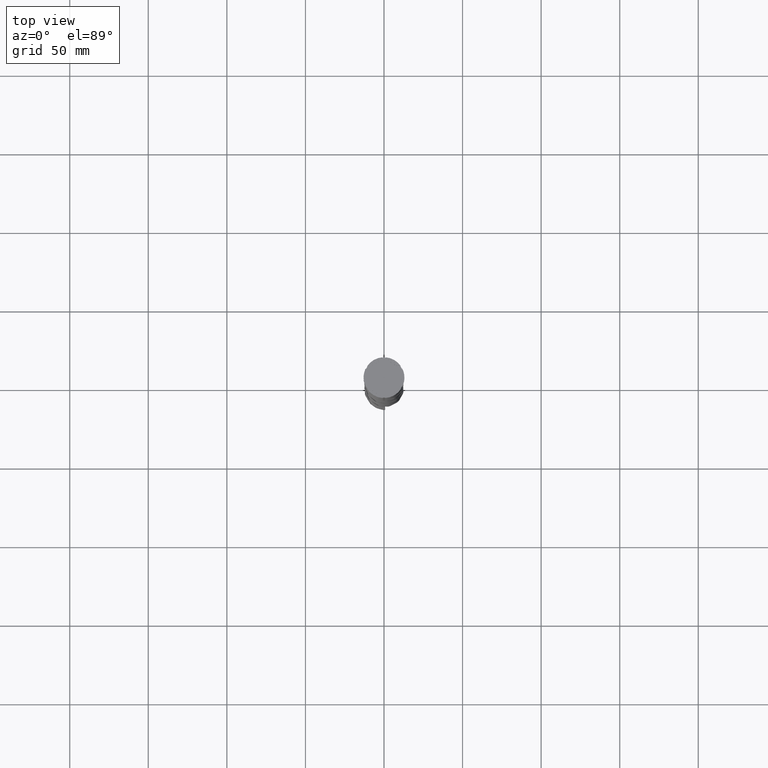
[diagram: clean part render]
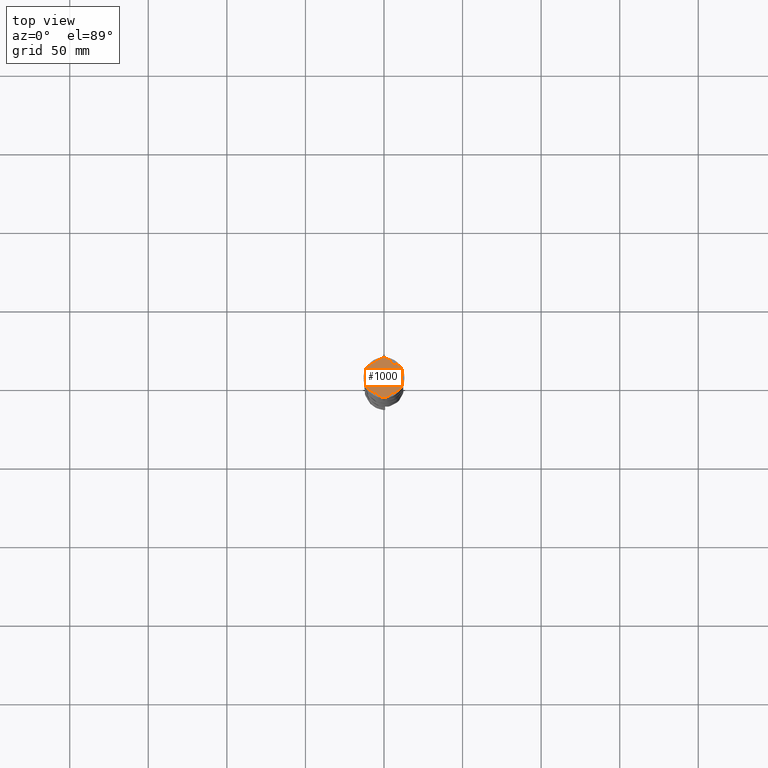
[diagram: same view with one face highlighted and labeled with its STEP entity id]
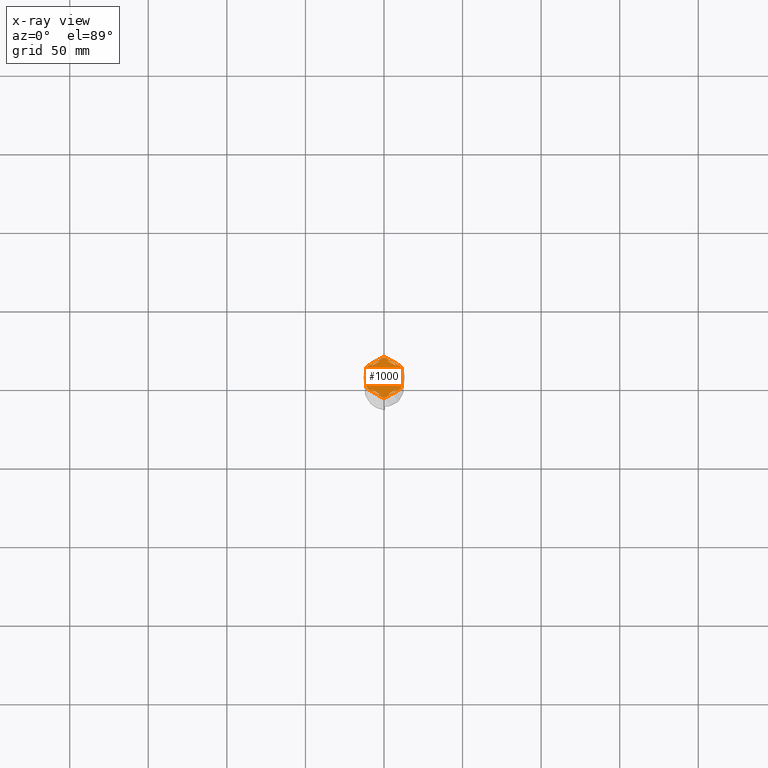
[diagram: x-ray of the same camera — body ghosted, the highlighted face saturated]
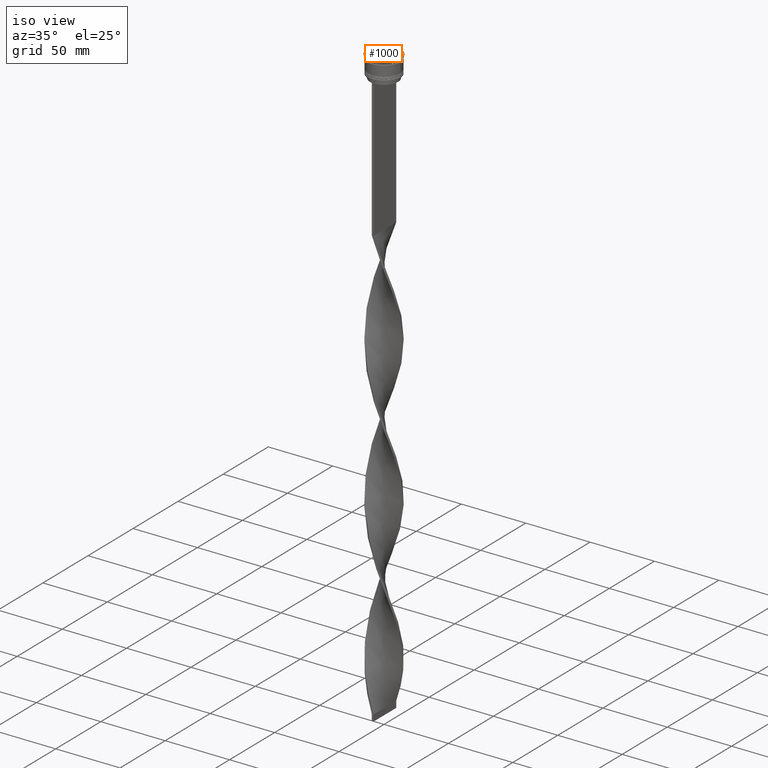
[diagram: same view with one face highlighted and labeled with its STEP entity id]
A machine part, top view. The second image highlights one B-rep face of the part: STEP entity #1000.
The next image is the same camera in x-ray: the body ghosted, the highlighted face saturated — about 0% of this face is hidden behind the body in this view.
A second angle (iso view) of the same face is appended — the face is thin or edge-on in the first view.
In plain terms, the highlighted planar face has unit normal (0, 0, 1).
Its self-contained STEP definition (entity closure, byte-faithful):
#6 = EDGE_CURVE ( 'NONE', #275, #1068, #1465, .T. ) ;
#7 = EDGE_CURVE ( 'NONE', #3404, #1574, #787, .T. ) ;
#10 = VERTEX_POINT ( 'NONE', #1131 ) ;
#82 = VERTEX_POINT ( 'NONE', #4408 ) ;
#87 = DIRECTION ( 'NONE',  ( -0.000000000000000000, -0.000000000000000000, -1.000000000000000000 ) ) ;
#92 = EDGE_LOOP ( 'NONE', ( #3323, #2376 ) ) ;
#137 = FACE_BOUND ( 'NONE', #1158, .T. ) ;
#141 = VERTEX_POINT ( 'NONE', #1529 ) ;
#156 = CARTESIAN_POINT ( 'NONE',  ( 0.000000000000000000, 0.000000000000000000, -1.000000000000000000 ) ) ;
#185 = AXIS2_PLACEMENT_3D ( 'NONE', #1970, #1545, #3731 ) ;
#186 = FACE_BOUND ( 'NONE', #3829, .T. ) ;
#213 = EDGE_LOOP ( 'NONE', ( #528, #3047, #1829, #2079, #3159, #2862, #894, #3066, #591, #1643, #510, #2410 ) ) ;
#275 = VERTEX_POINT ( 'NONE', #1103 ) ;
#302 = DIRECTION ( 'NONE',  ( 1.000000000000000000, 0.000000000000000000, 0.000000000000000000 ) ) ;
#340 = CARTESIAN_POINT ( 'NONE',  ( 0.000000000000000000, 0.000000000000000000, -1.000000000000000000 ) ) ;
#358 = ORIENTED_EDGE ( 'NONE', *, *, #4393, .F. ) ;
#391 = DIRECTION ( 'NONE',  ( -0.000000000000000000, -0.000000000000000000, -1.000000000000000000 ) ) ;
#443 = CARTESIAN_POINT ( 'NONE',  ( -11.50000000000000000, -5.388877434122992582, -1.000000000000000000 ) ) ;
#458 = CARTESIAN_POINT ( 'NONE',  ( -10.41690475583121689, 7.264853426459546348, -1.000000000000000000 ) ) ;
#463 = AXIS2_PLACEMENT_3D ( 'NONE', #2707, #1558, #3422 ) ;
#485 = EDGE_CURVE ( 'NONE', #2876, #1777, #888, .T. ) ;
#496 = CARTESIAN_POINT ( 'NONE',  ( 11.49999999999999822, -6.639528095680694797, -1.000000000000000000 ) ) ;
#510 = ORIENTED_EDGE ( 'NONE', *, *, #485, .T. ) ;
#528 = ORIENTED_EDGE ( 'NONE', *, *, #3219, .T. ) ;
#529 = PLANE ( 'NONE',  #463 ) ;
#541 = VERTEX_POINT ( 'NONE', #3752 ) ;
#544 = EDGE_CURVE ( 'NONE', #1068, #275, #4242, .T. ) ;
#553 = FACE_BOUND ( 'NONE', #3350, .T. ) ;
#554 = VECTOR ( 'NONE', #3702, 1000.000000000000000 ) ;
#561 = CIRCLE ( 'NONE', #713, 12.69999999999999929 ) ;
#591 = ORIENTED_EDGE ( 'NONE', *, *, #3009, .T. ) ;
#661 = EDGE_CURVE ( 'NONE', #141, #3609, #3010, .T. ) ;
#671 = CARTESIAN_POINT ( 'NONE',  ( 10.49999999999999467, 6.062177826491072175, -1.000000000000000888 ) ) ;
#682 = VERTEX_POINT ( 'NONE', #1355 ) ;
#713 = AXIS2_PLACEMENT_3D ( 'NONE', #742, #391, #3258 ) ;
#718 = VERTEX_POINT ( 'NONE', #3256 ) ;
#742 = CARTESIAN_POINT ( 'NONE',  ( 0.000000000000000000, 0.000000000000000000, -1.000000000000000000 ) ) ;
#748 = CARTESIAN_POINT ( 'NONE',  ( -10.41690475583121334, -7.264853426459548125, -1.000000000000000000 ) ) ;
#759 = CARTESIAN_POINT ( 'NONE',  ( 1.083095244168774673, -12.65373086058253982, -1.000000000000000000 ) ) ;
#767 = EDGE_CURVE ( 'NONE', #1623, #1777, #3087, .T. ) ;
#787 = LINE ( 'NONE', #1886, #998 ) ;
#803 = EDGE_CURVE ( 'NONE', #1787, #682, #1134, .T. ) ;
#809 = CARTESIAN_POINT ( 'NONE',  ( -11.50000000000000000, 6.639528095680691244, -1.000000000000000000 ) ) ;
#815 = CARTESIAN_POINT ( 'NONE',  ( 0.000000000000000000, 0.000000000000000000, -1.000000000000000000 ) ) ;
#837 = DIRECTION ( 'NONE',  ( 1.000000000000000000, 0.000000000000000000, 0.000000000000000000 ) ) ;
#842 = AXIS2_PLACEMENT_3D ( 'NONE', #156, #4451, #3391 ) ;
#879 = CARTESIAN_POINT ( 'NONE',  ( -2.410545827099867200, 10.73262637081210613, -1.000000000000000888 ) ) ;
#881 = VERTEX_POINT ( 'NONE', #1094 ) ;
#885 = EDGE_CURVE ( 'NONE', #4044, #4464, #2222, .T. ) ;
#888 = LINE ( 'NONE', #1929, #1822 ) ;
#894 = ORIENTED_EDGE ( 'NONE', *, *, #885, .T. ) ;
#902 = ORIENTED_EDGE ( 'NONE', *, *, #3064, .F. ) ;
#932 = DIRECTION ( 'NONE',  ( 1.000000000000000000, -1.776356839400250465E-14, 0.000000000000000000 ) ) ;
#980 = CARTESIAN_POINT ( 'NONE',  ( 0.000000000000000000, 0.000000000000000000, -1.000000000000000000 ) ) ;
#990 = AXIS2_PLACEMENT_3D ( 'NONE', #980, #3914, #4278 ) ;
#998 = VECTOR ( 'NONE', #2240, 1000.000000000000000 ) ;
#1000 = ADVANCED_FACE ( 'NONE', ( #137, #186, #1273, #4527, #4125, #553, #4080 ), #529, .T. ) ;
#1011 = AXIS2_PLACEMENT_3D ( 'NONE', #1589, #2651, #932 ) ;
#1068 = VERTEX_POINT ( 'NONE', #879 ) ;
#1094 = CARTESIAN_POINT ( 'NONE',  ( -1.083095244168783333, 12.65373086058254160, -1.000000000000000000 ) ) ;
#1103 = CARTESIAN_POINT ( 'NONE',  ( -8.089454172900135021, 7.453907108661106840, -1.000000000000000888 ) ) ;
#1112 = EDGE_CURVE ( 'NONE', #1653, #3438, #4626, .T. ) ;
#1122 = DIRECTION ( 'NONE',  ( 1.000000000000000000, 0.000000000000000000, 0.000000000000000000 ) ) ;
#1131 = CARTESIAN_POINT ( 'NONE',  ( 11.49999999999999822, 5.388877434122992582, -1.000000000000000000 ) ) ;
#1134 = LINE ( 'NONE', #1890, #3470 ) ;
#1137 = AXIS2_PLACEMENT_3D ( 'NONE', #3520, #4602, #302 ) ;
#1158 = EDGE_LOOP ( 'NONE', ( #3276, #2864 ) ) ;
#1179 = CARTESIAN_POINT ( 'NONE',  ( 2.410545827099861871, 10.73262637081210791, -1.000000000000000888 ) ) ;
#1185 = EDGE_LOOP ( 'NONE', ( #3807, #1438, #3831 ) ) ;
#1189 = VERTEX_POINT ( 'NONE', #4274 ) ;
#1200 = EDGE_CURVE ( 'NONE', #682, #1787, #2421, .T. ) ;
#1237 = DIRECTION ( 'NONE',  ( 0.000000000000000000, 0.000000000000000000, 1.000000000000000000 ) ) ;
#1238 = DIRECTION ( 'NONE',  ( -0.8660254037844385966, -0.5000000000000001110, 0.000000000000000000 ) ) ;
#1247 = AXIS2_PLACEMENT_3D ( 'NONE', #2908, #4351, #2229 ) ;
#1273 = FACE_BOUND ( 'NONE', #4477, .T. ) ;
#1278 = CARTESIAN_POINT ( 'NONE',  ( 0.000000000000000000, 13.27905619136138959, -1.000000000000000000 ) ) ;
#1317 = ORIENTED_EDGE ( 'NONE', *, *, #803, .F. ) ;
#1355 = CARTESIAN_POINT ( 'NONE',  ( 2.410545827099865868, -10.73262637081210791, -1.000000000000000888 ) ) ;
#1369 = AXIS2_PLACEMENT_3D ( 'NONE', #2595, #87, #1536 ) ;
#1438 = ORIENTED_EDGE ( 'NONE', *, *, #2664, .F. ) ;
#1465 = LINE ( 'NONE', #4049, #3926 ) ;
#1529 = CARTESIAN_POINT ( 'NONE',  ( -11.00000000000000000, 0.000000000000000000, -1.000000000000000000 ) ) ;
#1530 = VECTOR ( 'NONE', #4399, 1000.000000000000000 ) ;
#1536 = DIRECTION ( 'NONE',  ( 1.000000000000000000, 0.000000000000000000, 0.000000000000000000 ) ) ;
#1539 = LINE ( 'NONE', #4414, #554 ) ;
#1541 = EDGE_CURVE ( 'NONE', #3551, #4464, #2196, .T. ) ;
#1545 = DIRECTION ( 'NONE',  ( 0.000000000000000000, 0.000000000000000000, 1.000000000000000000 ) ) ;
#1558 = DIRECTION ( 'NONE',  ( 0.000000000000000000, 0.000000000000000000, 1.000000000000000000 ) ) ;
#1567 = LINE ( 'NONE', #496, #1530 ) ;
#1574 = VERTEX_POINT ( 'NONE', #4480 ) ;
#1577 = DIRECTION ( 'NONE',  ( -0.8660254037844388186, 0.4999999999999997224, 0.000000000000000000 ) ) ;
#1589 = CARTESIAN_POINT ( 'NONE',  ( 0.000000000000000000, 0.000000000000000000, -1.000000000000000000 ) ) ;
#1602 = CIRCLE ( 'NONE', #2657, 11.00000000000000000 ) ;
#1621 = CIRCLE ( 'NONE', #1247, 12.69999999999999929 ) ;
#1623 = VERTEX_POINT ( 'NONE', #3369 ) ;
#1643 = ORIENTED_EDGE ( 'NONE', *, *, #4198, .F. ) ;
#1653 = VERTEX_POINT ( 'NONE', #1179 ) ;
#1659 = LINE ( 'NONE', #1278, #2879 ) ;
#1703 = CIRCLE ( 'NONE', #2300, 12.69999999999999929 ) ;
#1722 = EDGE_CURVE ( 'NONE', #718, #1956, #1912, .T. ) ;
#1725 = DIRECTION ( 'NONE',  ( 0.8660254037844387076, -0.4999999999999999445, 0.000000000000000000 ) ) ;
#1768 = CARTESIAN_POINT ( 'NONE',  ( 10.41690475583121867, -7.264853426459537467, -1.000000000000000000 ) ) ;
#1777 = VERTEX_POINT ( 'NONE', #1768 ) ;
#1780 = EDGE_CURVE ( 'NONE', #1189, #141, #1892, .T. ) ;
#1787 = VERTEX_POINT ( 'NONE', #2456 ) ;
#1811 = CARTESIAN_POINT ( 'NONE',  ( 1.083095244168781557, 12.65373086058254160, -1.000000000000000000 ) ) ;
#1815 = VECTOR ( 'NONE', #1725, 999.9999999999998863 ) ;
#1822 = VECTOR ( 'NONE', #1994, 1000.000000000000114 ) ;
#1829 = ORIENTED_EDGE ( 'NONE', *, *, #1722, .T. ) ;
#1854 = CARTESIAN_POINT ( 'NONE',  ( -10.49999999999999822, -3.278719262151000624, -1.000000000000000888 ) ) ;
#1855 = DIRECTION ( 'NONE',  ( -0.000000000000000000, -0.000000000000000000, -1.000000000000000000 ) ) ;
#1886 = CARTESIAN_POINT ( 'NONE',  ( -10.49999999999999822, -6.062177826491068622, -1.000000000000000888 ) ) ;
#1890 = CARTESIAN_POINT ( 'NONE',  ( -2.602085213965210642E-15, -12.12435565298214080, -1.000000000000000888 ) ) ;
#1892 = CIRCLE ( 'NONE', #4526, 11.00000000000000000 ) ;
#1912 = LINE ( 'NONE', #3763, #3625 ) ;
#1929 = CARTESIAN_POINT ( 'NONE',  ( 5.612359739892467248E-18, -13.27905619136138959, -1.000000000000000000 ) ) ;
#1945 = CARTESIAN_POINT ( 'NONE',  ( 0.000000000000000000, 0.000000000000000000, -1.000000000000000000 ) ) ;
#1956 = VERTEX_POINT ( 'NONE', #1811 ) ;
#1970 = CARTESIAN_POINT ( 'NONE',  ( 0.000000000000000000, 0.000000000000000000, -1.000000000000000000 ) ) ;
#1994 = DIRECTION ( 'NONE',  ( 0.8660254037844385966, 0.4999999999999999445, 0.000000000000000000 ) ) ;
#2059 = CIRCLE ( 'NONE', #1011, 12.69999999999999929 ) ;
#2079 = ORIENTED_EDGE ( 'NONE', *, *, #4600, .F. ) ;
#2196 = CIRCLE ( 'NONE', #842, 12.69999999999999929 ) ;
#2222 = LINE ( 'NONE', #809, #4523 ) ;
#2229 = DIRECTION ( 'NONE',  ( 1.000000000000000000, 1.243449787580175325E-14, 0.000000000000000000 ) ) ;
#2240 = DIRECTION ( 'NONE',  ( -0.8660254037844384856, 0.5000000000000002220, 0.000000000000000000 ) ) ;
#2242 = DIRECTION ( 'NONE',  ( 0.000000000000000000, -1.000000000000000000, 0.000000000000000000 ) ) ;
#2268 = VERTEX_POINT ( 'NONE', #3028 ) ;
#2300 = AXIS2_PLACEMENT_3D ( 'NONE', #4371, #1855, #1122 ) ;
#2376 = ORIENTED_EDGE ( 'NONE', *, *, #7, .F. ) ;
#2410 = ORIENTED_EDGE ( 'NONE', *, *, #767, .F. ) ;
#2421 = CIRCLE ( 'NONE', #1137, 11.00000000000000000 ) ;
#2456 = CARTESIAN_POINT ( 'NONE',  ( 8.089454172900135021, -7.453907108661109504, -1.000000000000000888 ) ) ;
#2513 = ORIENTED_EDGE ( 'NONE', *, *, #6, .F. ) ;
#2548 = DIRECTION ( 'NONE',  ( -0.8660254037844387076, -0.4999999999999999445, 0.000000000000000000 ) ) ;
#2595 = CARTESIAN_POINT ( 'NONE',  ( 0.000000000000000000, 0.000000000000000000, -1.000000000000000000 ) ) ;
#2627 = CARTESIAN_POINT ( 'NONE',  ( -2.410545827099876082, -10.73262637081210435, -1.000000000000000888 ) ) ;
#2651 = DIRECTION ( 'NONE',  ( -0.000000000000000000, -0.000000000000000000, -1.000000000000000000 ) ) ;
#2657 = AXIS2_PLACEMENT_3D ( 'NONE', #4562, #3021, #4490 ) ;
#2664 = EDGE_CURVE ( 'NONE', #3609, #1189, #1539, .T. ) ;
#2707 = CARTESIAN_POINT ( 'NONE',  ( 0.000000000000000000, 0.000000000000000000, -1.000000000000000000 ) ) ;
#2732 = CIRCLE ( 'NONE', #3336, 11.00000000000000000 ) ;
#2777 = DIRECTION ( 'NONE',  ( 1.000000000000000000, 0.000000000000000000, 0.000000000000000000 ) ) ;
#2862 = ORIENTED_EDGE ( 'NONE', *, *, #4601, .F. ) ;
#2864 = ORIENTED_EDGE ( 'NONE', *, *, #1112, .F. ) ;
#2876 = VERTEX_POINT ( 'NONE', #759 ) ;
#2879 = VECTOR ( 'NONE', #1238, 1000.000000000000114 ) ;
#2908 = CARTESIAN_POINT ( 'NONE',  ( 0.000000000000000000, 0.000000000000000000, -1.000000000000000000 ) ) ;
#2929 = CARTESIAN_POINT ( 'NONE',  ( 8.089454172900138573, 7.453907108661105063, -1.000000000000000888 ) ) ;
#2951 = VECTOR ( 'NONE', #3799, 1000.000000000000227 ) ;
#3009 = EDGE_CURVE ( 'NONE', #3551, #541, #4129, .T. ) ;
#3010 = CIRCLE ( 'NONE', #990, 11.00000000000000000 ) ;
#3021 = DIRECTION ( 'NONE',  ( 0.000000000000000000, 0.000000000000000000, 1.000000000000000000 ) ) ;
#3028 = CARTESIAN_POINT ( 'NONE',  ( 10.49999999999999467, 3.278719262151012170, -1.000000000000000888 ) ) ;
#3047 = ORIENTED_EDGE ( 'NONE', *, *, #3670, .F. ) ;
#3064 = EDGE_CURVE ( 'NONE', #82, #2268, #4007, .T. ) ;
#3066 = ORIENTED_EDGE ( 'NONE', *, *, #1541, .F. ) ;
#3087 = CIRCLE ( 'NONE', #1369, 12.69999999999999929 ) ;
#3110 = LINE ( 'NONE', #3812, #4335 ) ;
#3128 = ORIENTED_EDGE ( 'NONE', *, *, #544, .F. ) ;
#3131 = EDGE_CURVE ( 'NONE', #1574, #3404, #1602, .T. ) ;
#3158 = DIRECTION ( 'NONE',  ( 0.000000000000000000, 0.000000000000000000, 1.000000000000000000 ) ) ;
#3159 = ORIENTED_EDGE ( 'NONE', *, *, #3643, .T. ) ;
#3219 = EDGE_CURVE ( 'NONE', #1623, #10, #1567, .T. ) ;
#3256 = CARTESIAN_POINT ( 'NONE',  ( 10.41690475583121156, 7.264853426459550789, -1.000000000000000000 ) ) ;
#3258 = DIRECTION ( 'NONE',  ( 1.000000000000000000, 0.000000000000000000, 0.000000000000000000 ) ) ;
#3276 = ORIENTED_EDGE ( 'NONE', *, *, #3537, .F. ) ;
#3304 = CARTESIAN_POINT ( 'NONE',  ( -11.50000000000000000, 5.388877434122992582, -1.000000000000000000 ) ) ;
#3323 = ORIENTED_EDGE ( 'NONE', *, *, #3131, .F. ) ;
#3336 = AXIS2_PLACEMENT_3D ( 'NONE', #815, #4057, #837 ) ;
#3350 = EDGE_LOOP ( 'NONE', ( #3128, #2513 ) ) ;
#3369 = CARTESIAN_POINT ( 'NONE',  ( 11.49999999999999822, -5.388877434122996135, -1.000000000000000000 ) ) ;
#3391 = DIRECTION ( 'NONE',  ( 1.000000000000000000, 7.105427357601001859E-15, 0.000000000000000000 ) ) ;
#3404 = VERTEX_POINT ( 'NONE', #2627 ) ;
#3422 = DIRECTION ( 'NONE',  ( 1.000000000000000000, 0.000000000000000000, -0.000000000000000000 ) ) ;
#3438 = VERTEX_POINT ( 'NONE', #2929 ) ;
#3470 = VECTOR ( 'NONE', #2548, 999.9999999999998863 ) ;
#3520 = CARTESIAN_POINT ( 'NONE',  ( 0.000000000000000000, 0.000000000000000000, -1.000000000000000000 ) ) ;
#3537 = EDGE_CURVE ( 'NONE', #3438, #1653, #2732, .T. ) ;
#3551 = VERTEX_POINT ( 'NONE', #748 ) ;
#3609 = VERTEX_POINT ( 'NONE', #1854 ) ;
#3625 = VECTOR ( 'NONE', #1577, 1000.000000000000000 ) ;
#3643 = EDGE_CURVE ( 'NONE', #881, #4097, #1659, .T. ) ;
#3670 = EDGE_CURVE ( 'NONE', #718, #10, #2059, .T. ) ;
#3702 = DIRECTION ( 'NONE',  ( 0.000000000000000000, 1.000000000000000000, 0.000000000000000000 ) ) ;
#3727 = CARTESIAN_POINT ( 'NONE',  ( -11.50000000000000000, -6.639528095680696573, -1.000000000000000000 ) ) ;
#3731 = DIRECTION ( 'NONE',  ( 1.000000000000000000, 0.000000000000000000, 0.000000000000000000 ) ) ;
#3752 = CARTESIAN_POINT ( 'NONE',  ( -1.083095244168779780, -12.65373086058253982, -1.000000000000000000 ) ) ;
#3763 = CARTESIAN_POINT ( 'NONE',  ( 11.50000000000000000, 6.639528095680698350, -1.000000000000000000 ) ) ;
#3773 = DIRECTION ( 'NONE',  ( 1.000000000000000000, 0.000000000000000000, 0.000000000000000000 ) ) ;
#3799 = DIRECTION ( 'NONE',  ( 0.8660254037844387076, -0.4999999999999997780, 0.000000000000000000 ) ) ;
#3807 = ORIENTED_EDGE ( 'NONE', *, *, #1780, .F. ) ;
#3812 = CARTESIAN_POINT ( 'NONE',  ( 10.49999999999999289, -6.062177826491073063, -1.000000000000000888 ) ) ;
#3829 = EDGE_LOOP ( 'NONE', ( #902, #358 ) ) ;
#3831 = ORIENTED_EDGE ( 'NONE', *, *, #661, .F. ) ;
#3914 = DIRECTION ( 'NONE',  ( 0.000000000000000000, 0.000000000000000000, 1.000000000000000000 ) ) ;
#3926 = VECTOR ( 'NONE', #4361, 1000.000000000000000 ) ;
#4007 = CIRCLE ( 'NONE', #4382, 11.00000000000000000 ) ;
#4044 = VERTEX_POINT ( 'NONE', #3304 ) ;
#4049 = CARTESIAN_POINT ( 'NONE',  ( -1.734723475976807094E-15, 12.12435565298214080, -1.000000000000000888 ) ) ;
#4057 = DIRECTION ( 'NONE',  ( 0.000000000000000000, 0.000000000000000000, 1.000000000000000000 ) ) ;
#4080 = FACE_OUTER_BOUND ( 'NONE', #213, .T. ) ;
#4085 = ORIENTED_EDGE ( 'NONE', *, *, #1200, .F. ) ;
#4097 = VERTEX_POINT ( 'NONE', #458 ) ;
#4125 = FACE_BOUND ( 'NONE', #1185, .T. ) ;
#4129 = LINE ( 'NONE', #3727, #2951 ) ;
#4198 = EDGE_CURVE ( 'NONE', #2876, #541, #561, .T. ) ;
#4242 = CIRCLE ( 'NONE', #185, 11.00000000000000000 ) ;
#4274 = CARTESIAN_POINT ( 'NONE',  ( -10.49999999999999822, 3.278719262151000624, -1.000000000000000888 ) ) ;
#4278 = DIRECTION ( 'NONE',  ( 1.000000000000000000, 0.000000000000000000, 0.000000000000000000 ) ) ;
#4335 = VECTOR ( 'NONE', #4555, 1000.000000000000000 ) ;
#4351 = DIRECTION ( 'NONE',  ( -0.000000000000000000, -0.000000000000000000, -1.000000000000000000 ) ) ;
#4361 = DIRECTION ( 'NONE',  ( 0.8660254037844385966, 0.5000000000000001110, -0.000000000000000000 ) ) ;
#4371 = CARTESIAN_POINT ( 'NONE',  ( 0.000000000000000000, 0.000000000000000000, -1.000000000000000000 ) ) ;
#4382 = AXIS2_PLACEMENT_3D ( 'NONE', #1945, #1237, #3773 ) ;
#4393 = EDGE_CURVE ( 'NONE', #2268, #82, #3110, .T. ) ;
#4399 = DIRECTION ( 'NONE',  ( 1.306360520641008153E-16, 1.000000000000000000, 0.000000000000000000 ) ) ;
#4408 = CARTESIAN_POINT ( 'NONE',  ( 10.49999999999999467, -3.278719262151014835, -1.000000000000000888 ) ) ;
#4414 = CARTESIAN_POINT ( 'NONE',  ( -10.49999999999999822, 6.062177826491068622, -1.000000000000000888 ) ) ;
#4451 = DIRECTION ( 'NONE',  ( -0.000000000000000000, -0.000000000000000000, -1.000000000000000000 ) ) ;
#4464 = VERTEX_POINT ( 'NONE', #443 ) ;
#4477 = EDGE_LOOP ( 'NONE', ( #4085, #1317 ) ) ;
#4480 = CARTESIAN_POINT ( 'NONE',  ( -8.089454172900133244, -7.453907108661111280, -1.000000000000000888 ) ) ;
#4490 = DIRECTION ( 'NONE',  ( 1.000000000000000000, 0.000000000000000000, 0.000000000000000000 ) ) ;
#4523 = VECTOR ( 'NONE', #2242, 1000.000000000000000 ) ;
#4526 = AXIS2_PLACEMENT_3D ( 'NONE', #340, #3158, #2777 ) ;
#4527 = FACE_BOUND ( 'NONE', #92, .T. ) ;
#4555 = DIRECTION ( 'NONE',  ( -1.430775808321104180E-16, -1.000000000000000000, 0.000000000000000000 ) ) ;
#4562 = CARTESIAN_POINT ( 'NONE',  ( 0.000000000000000000, 0.000000000000000000, -1.000000000000000000 ) ) ;
#4600 = EDGE_CURVE ( 'NONE', #881, #1956, #1621, .T. ) ;
#4601 = EDGE_CURVE ( 'NONE', #4044, #4097, #1703, .T. ) ;
#4602 = DIRECTION ( 'NONE',  ( 0.000000000000000000, 0.000000000000000000, 1.000000000000000000 ) ) ;
#4626 = LINE ( 'NONE', #671, #1815 ) ;